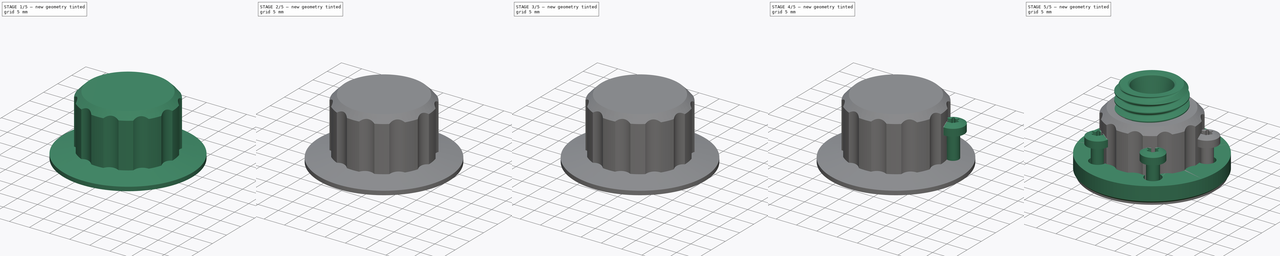
[diagram: build sequence overview — one tinted view per stage of 5, left to right]
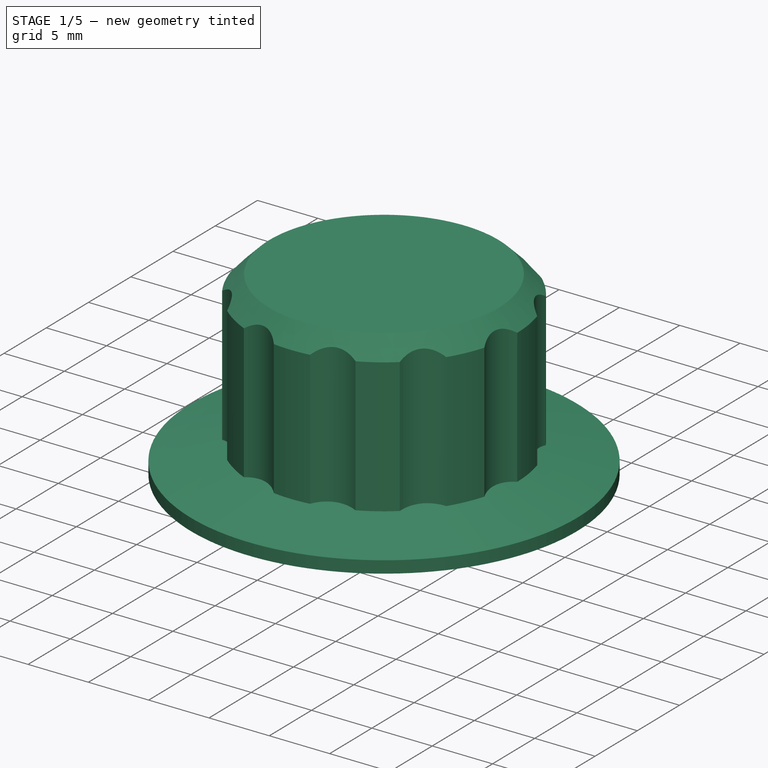
[diagram: stage 1 of 5 — iso view after this stage's code; geometry added in this stage tinted green]
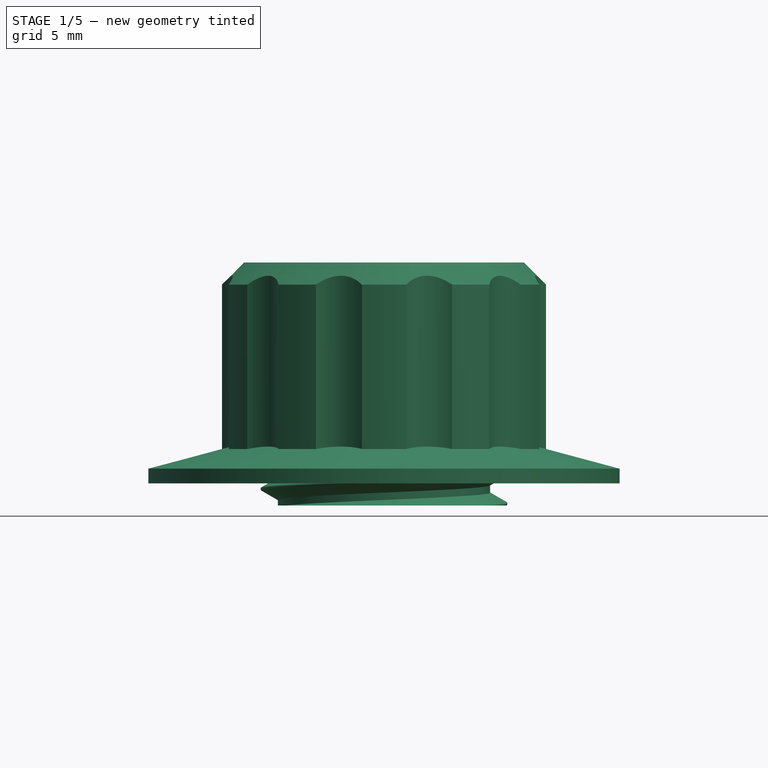
[diagram: stage 1 of 5 — front view after this stage's code; geometry added in this stage tinted green]
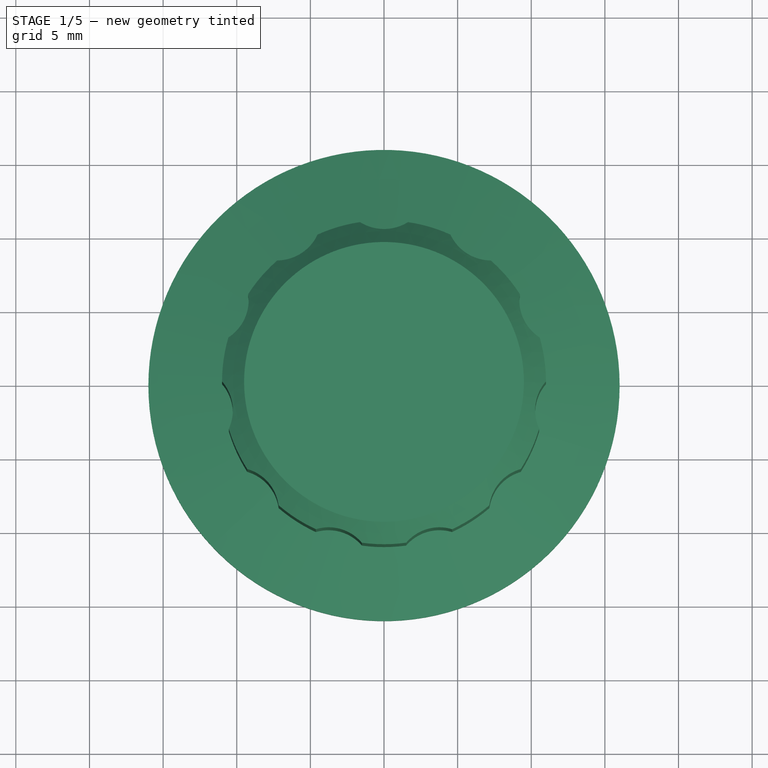
[diagram: stage 1 of 5 — top view after this stage's code; geometry added in this stage tinted green]
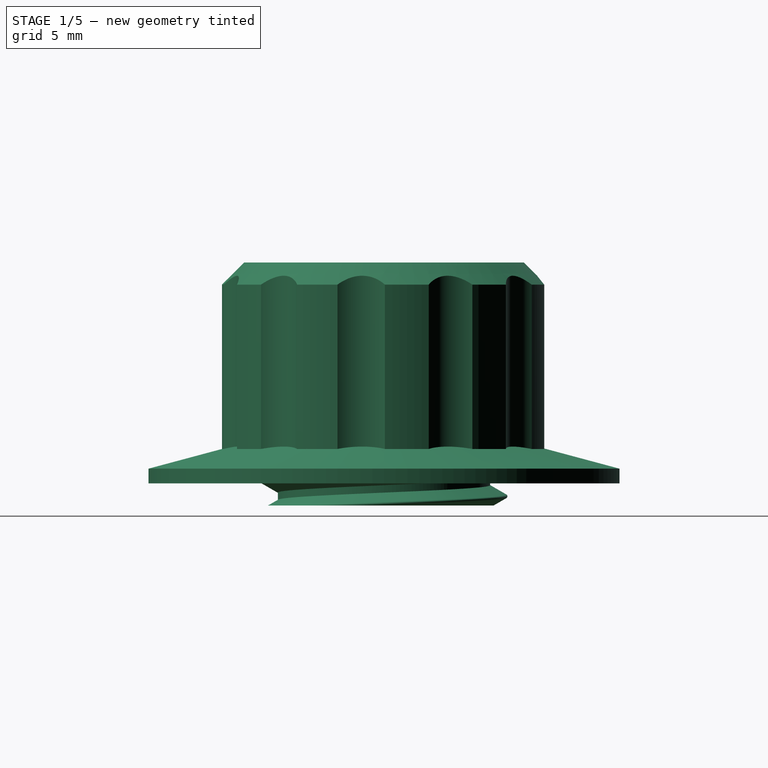
[diagram: stage 1 of 5 — right view after this stage's code; geometry added in this stage tinted green]
FCSTD DOCUMENT  (FreeCAD 0.21R30340 +2 (Git))
Label: Filamentbuchse-bowden2
License: All rights reserved
LicenseURL: http://en.wikipedia.org/wiki/All_rights_reserved
objects: Sketcher::SketchObject×19, PartDesign::Chamfer×13, PartDesign::Pocket×11, Part::FeaturePython×10, PartDesign::PolarPattern×7, PartDesign::Body×7, PartDesign::Boolean×5, Part::Feature×5, PartDesign::Pad×4, PartDesign::Revolution×3, PartDesign::Hole×2, App::FeaturePython×1, Part::Part2DObjectPython×1
note: 120 computed .brp shape members not serialized (recipe doc carries the construction recipe); baked Part::Feature solids carry a one-line shape summary decoded from their .brp

FEATURE [PartDesign::Body] Body004  label="SpannMutter"
  Group = -> [Sketch010,Pad002,Chamfer007,Sketch011,Pocket005,PolarPattern005,Sketch012,Pocket007,Pocket008,Chamfer008,Sketch013,Chamfer009,Boolean002]
  Origin = -> Origin004
  Placement = pos=(0,0,12) rot=(0,0,1;0rad)
  Tip = -> Boolean002
FEATURE [Part::FeaturePython] ScrewTap002  label="M16x8.5-ScrewTap001"  # Fasteners workbench fastener (typed FeaturePython)
  Placement = pos=(0,0,8.5) rot=(0,0,1;0rad)
  diameter = 13
  diameterCustom = 6
  invert = false
  leftHanded = false
  length = 8.5
  matchOuter = false
  offset = 0
  pitchCustom = 1
  thread = true
  type = 2
  expr: .Placement.Base.z = <<Pocket011>>.Length
  expr: length = <<Pocket011>>.Length
FEATURE [Sketcher::SketchObject] Sketch014
  FullyConstrained = true
  MapMode = 5
  Support = -> [XY_Plane005]
  sketch-geometry (1):
    g0: Circle CenterX=0 CenterY=0 CenterZ=0 NormalX=0 NormalY=0 NormalZ=1 AngleXU=0 Radius=11
  constraints (2):
    c: Coincident(g0,g-1)
    c: Diameter(g0) = 22  'HatDiameter'
FEATURE [PartDesign::Pad] Pad003
  Direction = (0,0,1)
  Length = 15
  Length2 = 10
  Profile = -> Sketch014
  ReferenceAxis = -> Sketch014 [N_Axis]
  Refine = true
  Type = 0
FEATURE [PartDesign::Chamfer] Chamfer010
  Angle = 45
  Base = -> Pad003 [Edge3,Edge2]
  BaseFeature = -> Pad003
  ChamferType = 0
  FlipDirection = false
  Refine = true
  Size = 1.5
  Size2 = 1
  SupportTransform = false
  UseAllEdges = false
FEATURE [Sketcher::SketchObject] Sketch015
  FullyConstrained = true
  MapMode = 5
  Support = -> [XY_Plane005]
  expr: Constraints[4] = <<Sketch014>>.Constraints.HatDiameter / 2 + 0.8 * .Constraints.radius
  sketch-geometry (2):
    g0: ArcOfCircle CenterX=2e-16 CenterY=13.4 CenterZ=0 NormalX=0 NormalY=0 NormalZ=1 AngleXU=0 Radius=3 StartAngle=3.14159 EndAngle=6.28319
    g1: LineSegment StartX=-3 StartY=13.4 StartZ=0 EndX=3 EndY=13.4 EndZ=0
  constraints (6):
    c: Coincident(g1,g0)
    c: Coincident(g1,g0)
    c: Symmetric(g0,g0,g-2)
    c: PointOnObject(g0,g1)
    c: DistanceY(g-1,g0) = 13.4
    c: Radius(g0) = 3  'radius'
FEATURE [PartDesign::Pocket] Pocket009
  BaseFeature = -> Chamfer010
  Direction = (0,0,-1)
  Inverse = false
  Length = 5
  Length2 = 5
  Profile = -> Sketch015
  ReferenceAxis = -> Sketch015 [N_Axis]
  Refine = true
  Reversed = true
  Type = 1
FEATURE [PartDesign::PolarPattern] PolarPattern006
  Angle = 360
  Axis = -> Sketch015 [N_Axis]
  BaseFeature = -> Pocket009
  Occurrences = 11
  Originals = -> [Pocket009]
  Refine = true
FEATURE [Sketcher::SketchObject] Sketch016
  FullyConstrained = true
  MapMode = 5
  Placement = pos=(0,0,0) rot=(0,1,0;3.14159rad)
  Support = -> [XY_Plane005]
  sketch-geometry (1):
    g0: Circle CenterX=0 CenterY=0 CenterZ=0 NormalX=0 NormalY=0 NormalZ=1 AngleXU=0 Radius=5.5
  constraints (2):
    c: Coincident(g0,g-1)
    c: Diameter(g0) = 11
FEATURE [PartDesign::Pocket] Pocket010
  BaseFeature = -> PolarPattern006
  Direction = (0,0,1)
  Inverse = false
  Length = 13
  Length2 = 5
  Profile = -> Sketch016
  ReferenceAxis = -> Sketch016 [N_Axis]
  Refine = true
  Type = 0
  expr: Length = Pad003.Length - 2mm
FEATURE [Sketcher::SketchObject] Sketch017
  FullyConstrained = true
  MapMode = 5
  Placement = pos=(0,0,0) rot=(0,1,0;3.14159rad)
  Support = -> [XY_Plane005]
  sketch-geometry (1):
    g0: Circle CenterX=0 CenterY=0 CenterZ=0 NormalX=0 NormalY=0 NormalZ=1 AngleXU=0 Radius=7
  constraints (2):
    c: Coincident(g0,g-1)
    c: Diameter(g0) = 14
FEATURE [PartDesign::Pocket] Pocket011
  BaseFeature = -> Pocket010
  Direction = (0,0,1)
  Inverse = false
  Length = 8.5
  Length2 = 5
  Profile = -> Sketch017
  ReferenceAxis = -> Sketch017 [N_Axis]
  Refine = true
  Type = 0
FEATURE [PartDesign::Chamfer] Chamfer011
  Angle = 45
  Base = -> Pocket011 [Edge42]
  BaseFeature = -> Pocket011
  ChamferType = 0
  FlipDirection = false
  Refine = true
  Size = 1.5
  Size2 = 1
  SupportTransform = false
  UseAllEdges = false
FEATURE [PartDesign::Body] Body005  label="SpannAbdeckung"
  Group = -> [Sketch014,Pad003,Chamfer010,Sketch015,Pocket009,PolarPattern006,Sketch016,Pocket010,Pocket011,Chamfer011,Chamfer012,Boolean003,Sketch017]
  Origin = -> Origin005
  Placement = pos=(0,0,12) rot=(0,0,1;0rad)
  Tip = -> Boolean003
FEATURE [Sketcher::SketchObject] Sketch018
  FullyConstrained = false
  MapMode = 5
  Placement = pos=(0,0,0) rot=(1,0,0;1.5708rad)
  Support = -> [XZ_Plane006]
  sketch-geometry (8):
    g0: LineSegment StartX=16 StartY=1 StartZ=0 EndX=16 EndY=0 EndZ=0
    g1: LineSegment StartX=16 StartY=0 StartZ=0 EndX=0 EndY=0 EndZ=0
    g2: LineSegment StartX=0 StartY=0 StartZ=0 EndX=0 EndY=7.6077 EndZ=0
    g3: LineSegment StartX=8 StartY=2.6077 StartZ=0 EndX=10 EndY=2.6077 EndZ=0
    g4: LineSegment StartX=10 StartY=2.6077 StartZ=0 EndX=16 EndY=1 EndZ=0
    g5: LineSegment StartX=0 StartY=7.6077 StartZ=0 EndX=6.5 EndY=7.6077 EndZ=0
    g6: LineSegment StartX=6.5 StartY=7.6077 StartZ=0 EndX=8 EndY=6.1077 EndZ=0
    g7: LineSegment StartX=8 StartY=6.1077 StartZ=0 EndX=8 EndY=2.6077 EndZ=0
  constraints (23):
    c: PointOnObject(g5,g-2)
    c: Coincident(g4,g0)
    c: PointOnObject(g0,g-1)
    c: Coincident(g0,g1)
    c: Coincident(g1,g-1)
    c: Coincident(g1,g2)
    c: Coincident(g2,g5)
    c: DistanceX(g5,g6) = 8
    c: DistanceX(g1,g1) = 16
    c: Vertical(g0)
    c: DistanceY(g0,g0) = 1
    c: Coincident(g3,g4)
    c: Horizontal(g3)
    c: DistanceX(g1,g3) = 10
    c: Angle(g4,g1) = 0.261799
    c: DistanceY(g1,g3) = 2.6077  'height'
    c: Coincident(g5,g6)
    c: Horizontal(g5)
    c: Coincident(g7,g6)
    c: DistanceY(g3,g5) = 5
    c: DistanceX(g5,g6) = 1.5
    c: Vertical(g7)
    c: Coincident(g7,g3)
FEATURE [PartDesign::Revolution] Revolution002
  Angle = 360
  Axis = (-3e-16,3e-16,1)
  Base = (0,0,0)
  Placement = pos=(0,0,0) rot=(1,0,0;1.5708rad)
  Profile = -> Sketch018
  ReferenceAxis = -> Z_Axis006
  Refine = true
  Reversed = true
FEATURE [Part::FeaturePython] ScrewDie001  label="M16x7-ScrewDie"  # Fasteners workbench fastener (typed FeaturePython)
  Placement = pos=(0,0,9.6077) rot=(0,0,1;0rad)
  diameter = 13
  diameterCustom = 6
  invert = false
  leftHanded = false
  length = 7
  matchOuter = false
  offset = 0
  pitchCustom = 1
  thread = true
  type = 0
  expr: .Placement.Base.z = Sketch018.Constraints.height + length
FEATURE [PartDesign::Boolean] Boolean004
  BaseFeature = -> Revolution002
  Group = -> [ScrewDie001]
  Refine = true
  Type = 1
FEATURE [PartDesign::Body] Body006  label="Abdeckunghalter"
  Group = -> [Sketch018,Revolution002,Boolean004]
  Origin = -> Origin006
  Placement = pos=(0,0,9.4) rot=(0,0,1;0rad)
  Tip = -> Boolean004
note: 1 file-system path scrubbed to <path> (originals preserved in the JSON sidecar)
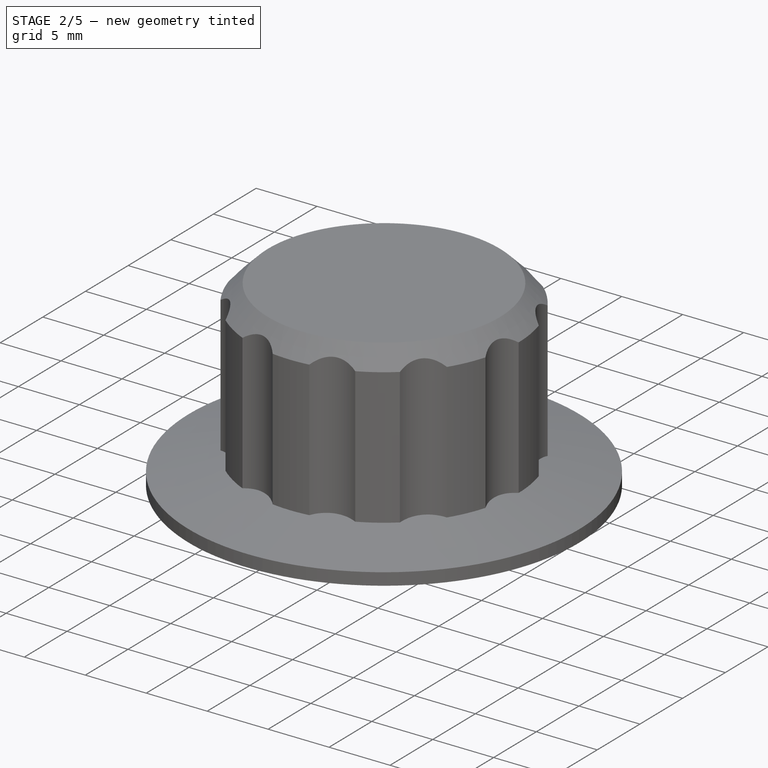
[diagram: stage 2 of 5 — iso view after this stage's code; geometry added in this stage tinted green]
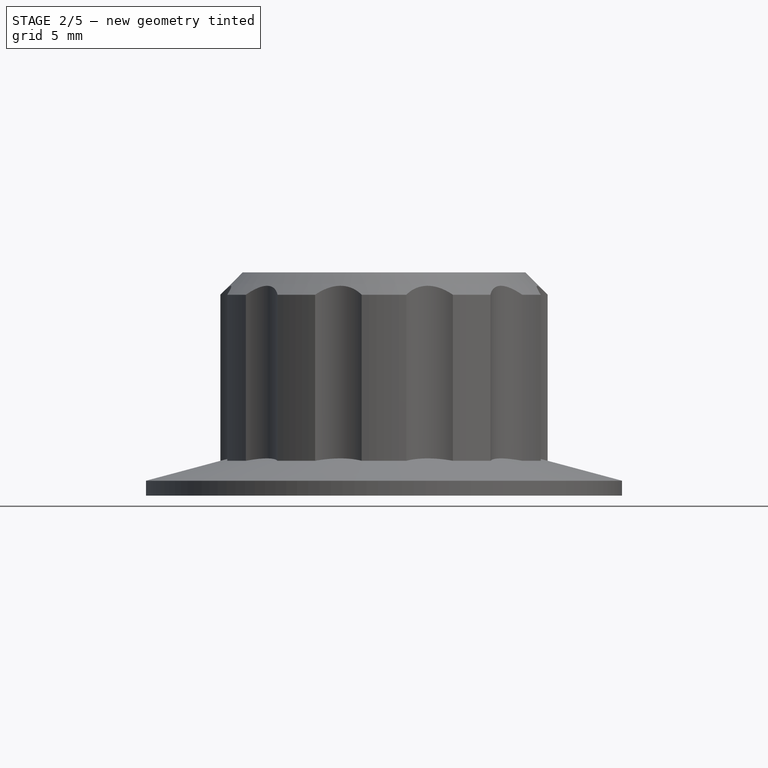
[diagram: stage 2 of 5 — front view after this stage's code; geometry added in this stage tinted green]
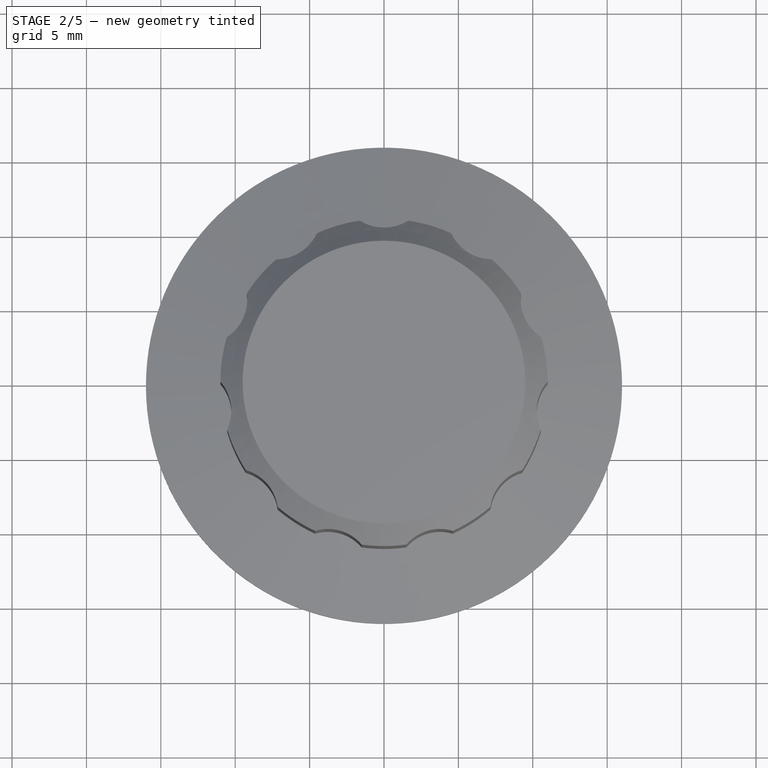
[diagram: stage 2 of 5 — top view after this stage's code; geometry added in this stage tinted green]
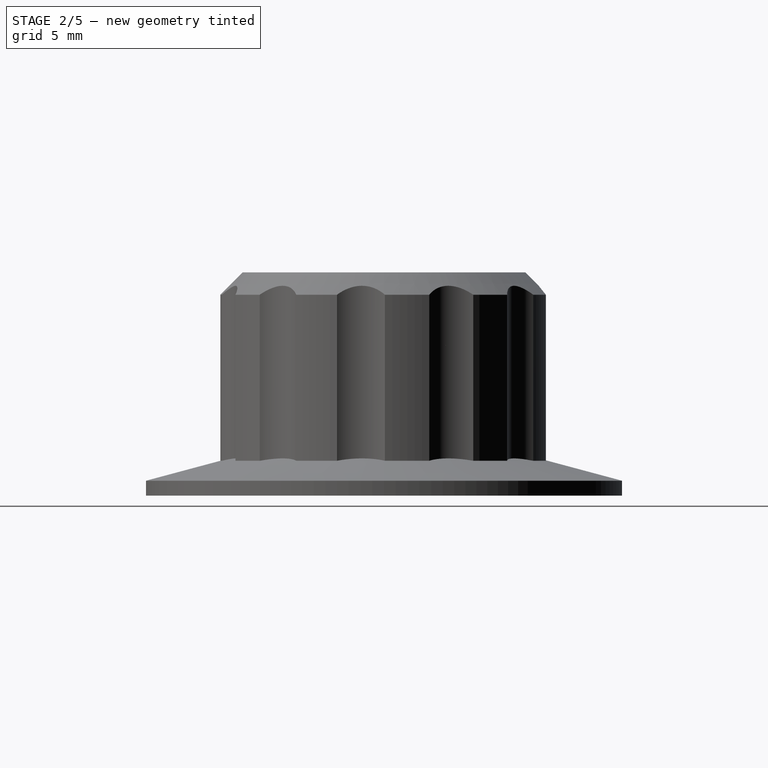
[diagram: stage 2 of 5 — right view after this stage's code; geometry added in this stage tinted green]
FEATURE [PartDesign::Body] Body003  label="Spannzange"
  Group = -> [Sketch008,Revolution001,Sketch001,Chamfer006,Pocket003,PolarPattern003,Sketch009,Pocket004,PolarPattern004]
  Origin = -> Origin003
  Placement = pos=(0,0,11.5) rot=(0,0,1;0rad)
  Tip = -> PolarPattern004
FEATURE [Part::Feature] Part__Feature001  label="ruthex RX-M3-5,008"
  Placement = pos=(0,12,4.5) rot=(0,0,1;0rad)
  shape: bbox 4.669 x 4.629 x 4.252 mm, 336 faces (baked)
FEATURE [Part::Feature] Part__Feature002  label="ruthex RX-M3-5,009"
  Placement = pos=(11.4127,3.7082,4.5) rot=(0,0,1;0rad)
  shape: bbox 4.669 x 4.629 x 4.252 mm, 336 faces (baked)
  expr: .Placement.Base.x = 12mm * sin(72°)
  expr: .Placement.Base.y = 12mm * cos(72°)
FEATURE [Part::Feature] Part__Feature003  label="ruthex RX-M3-5,010"
  Placement = pos=(-11.4127,3.7082,4.5) rot=(0,0,1;0rad)
  shape: bbox 4.669 x 4.629 x 4.252 mm, 336 faces (baked)
  expr: .Placement.Base.x = -12mm * sin(72°)
  expr: .Placement.Base.y = 12mm * cos(72°)
FEATURE [Part::Feature] Part__Feature004  label="ruthex RX-M3-5,011"
  Placement = pos=(-7.05342,-9.7082,4.5) rot=(0,0,1;0rad)
  shape: bbox 4.669 x 4.629 x 4.252 mm, 336 faces (baked)
  expr: .Placement.Base.x = -12mm * sin(36°)
  expr: .Placement.Base.y = -12mm * cos(36°)
FEATURE [Part::Feature] Part__Feature005  label="ruthex RX-M3-5,012"
  Placement = pos=(7.05342,-9.7082,4.5) rot=(0,0,1;0rad)
  shape: bbox 4.669 x 4.629 x 4.252 mm, 336 faces (baked)
  expr: .Placement.Base.x = 12mm * sin(36°)
  expr: .Placement.Base.y = -12mm * cos(36°)
FEATURE [Part::FeaturePython] ScrewTap001  label="M16x8-ScrewTap"  # Fasteners workbench fastener (typed FeaturePython)
  Placement = pos=(0,0,8) rot=(0,0,1;0rad)
  diameter = 13
  diameterCustom = 6
  invert = false
  leftHanded = false
  length = 8
  matchOuter = false
  offset = 0
  pitchCustom = 1
  thread = true
  type = 2
  expr: .Placement.Base.z = Pad002.Length - 3mm
  expr: length = Pad002.Length - 3mm
FEATURE [Sketcher::SketchObject] Sketch010
  FullyConstrained = true
  MapMode = 5
  Support = -> [XY_Plane004]
  sketch-geometry (1):
    g0: Circle CenterX=0 CenterY=0 CenterZ=0 NormalX=0 NormalY=0 NormalZ=1 AngleXU=0 Radius=11
  constraints (2):
    c: Coincident(g0,g-1)
    c: Diameter(g0) = 22  'HatDiameter'
FEATURE [PartDesign::Pad] Pad002
  Direction = (0,0,1)
  Length = 11
  Length2 = 10
  Profile = -> Sketch010
  ReferenceAxis = -> Sketch010 [N_Axis]
  Refine = true
  Type = 0
FEATURE [PartDesign::Chamfer] Chamfer007
  Angle = 45
  Base = -> Pad002 [Edge3,Edge2]
  BaseFeature = -> Pad002
  ChamferType = 0
  FlipDirection = false
  Refine = true
  Size = 1.5
  Size2 = 1
  SupportTransform = false
  UseAllEdges = false
FEATURE [Sketcher::SketchObject] Sketch011
  FullyConstrained = true
  MapMode = 5
  Support = -> [XY_Plane004]
  expr: Constraints[4] = <<Sketch010>>.Constraints.HatDiameter / 2 + 0.8 * .Constraints.radius
  sketch-geometry (2):
    g0: ArcOfCircle CenterX=2e-16 CenterY=13.4 CenterZ=0 NormalX=0 NormalY=0 NormalZ=1 AngleXU=0 Radius=3 StartAngle=3.14159 EndAngle=6.28319
    g1: LineSegment StartX=-3 StartY=13.4 StartZ=0 EndX=3 EndY=13.4 EndZ=0
  constraints (6):
    c: Coincident(g1,g0)
    c: Coincident(g1,g0)
    c: Symmetric(g0,g0,g-2)
    c: PointOnObject(g0,g1)
    c: DistanceY(g-1,g0) = 13.4
    c: Radius(g0) = 3  'radius'
FEATURE [PartDesign::Pocket] Pocket005
  BaseFeature = -> Chamfer007
  Direction = (0,0,-1)
  Inverse = false
  Length = 5
  Length2 = 5
  Profile = -> Sketch011
  ReferenceAxis = -> Sketch011 [N_Axis]
  Refine = true
  Reversed = true
  Type = 1
FEATURE [PartDesign::PolarPattern] PolarPattern005
  Angle = 360
  Axis = -> Sketch011 [N_Axis]
  BaseFeature = -> Pocket005
  Occurrences = 11
  Originals = -> [Pocket005]
  Refine = true
FEATURE [Sketcher::SketchObject] Sketch012
  FullyConstrained = true
  MapMode = 5
  Placement = pos=(0,0,0) rot=(0,1,0;3.14159rad)
  Support = -> [XY_Plane004]
  sketch-geometry (1):
    g0: Circle CenterX=0 CenterY=0 CenterZ=0 NormalX=0 NormalY=0 NormalZ=1 AngleXU=0 Radius=7
  constraints (2):
    c: Coincident(g0,g-1)
    c: Diameter(g0) = 14
FEATURE [PartDesign::Pocket] Pocket007
  BaseFeature = -> PolarPattern005
  Direction = (0,0,1)
  Inverse = false
  Length = 9
  Length2 = 5
  Profile = -> Sketch012
  ReferenceAxis = -> Sketch012 [N_Axis]
  Refine = true
  Type = 0
  expr: Length = Pad002.Length - 2mm
FEATURE [Sketcher::SketchObject] Sketch013
  AttachmentOffset = pos=(0,0,9) rot=(0,0,1;0rad)
  FullyConstrained = true
  MapMode = 5
  Placement = pos=(0,0,9) rot=(0,0,1;0rad)
  Support = -> [XY_Plane004]
  expr: .AttachmentOffset.Base.z = Pocket007.Length
  sketch-geometry (1):
    g0: Circle CenterX=0 CenterY=0 CenterZ=0 NormalX=0 NormalY=0 NormalZ=1 AngleXU=0 Radius=5
  constraints (2):
    c: Coincident(g0,g-1)
    c: Diameter(g0) = 10
FEATURE [PartDesign::Pocket] Pocket008
  BaseFeature = -> Pocket007
  Direction = (0,0,-1)
  Inverse = false
  Length = 5
  Length2 = 5
  Profile = -> Sketch013
  ReferenceAxis = -> Sketch013 [N_Axis]
  Refine = true
  Reversed = true
  TaperAngle = -30
  Type = 0
FEATURE [PartDesign::Chamfer] Chamfer008
  Angle = 45
  Base = -> Pocket008 [Edge42]
  BaseFeature = -> Pocket008
  ChamferType = 0
  FlipDirection = false
  Refine = true
  Size = 1.5
  Size2 = 1
  SupportTransform = false
  UseAllEdges = false
FEATURE [PartDesign::Chamfer] Chamfer009
  Angle = 45
  Base = -> Chamfer008 [Edge80]
  BaseFeature = -> Chamfer008
  ChamferType = 0
  FlipDirection = false
  Refine = true
  Size = 0.3
  Size2 = 1
  SupportTransform = false
  UseAllEdges = false
FEATURE [PartDesign::Chamfer] Chamfer012
  Angle = 45
  Base = -> Chamfer011 [Edge80]
  BaseFeature = -> Chamfer011
  ChamferType = 0
  FlipDirection = false
  Refine = true
  Size = 0.3
  Size2 = 1
  SupportTransform = false
  UseAllEdges = false
FEATURE [PartDesign::Boolean] Boolean003
  BaseFeature = -> Chamfer012
  Group = -> [ScrewTap002]
  Refine = true
  Type = 1
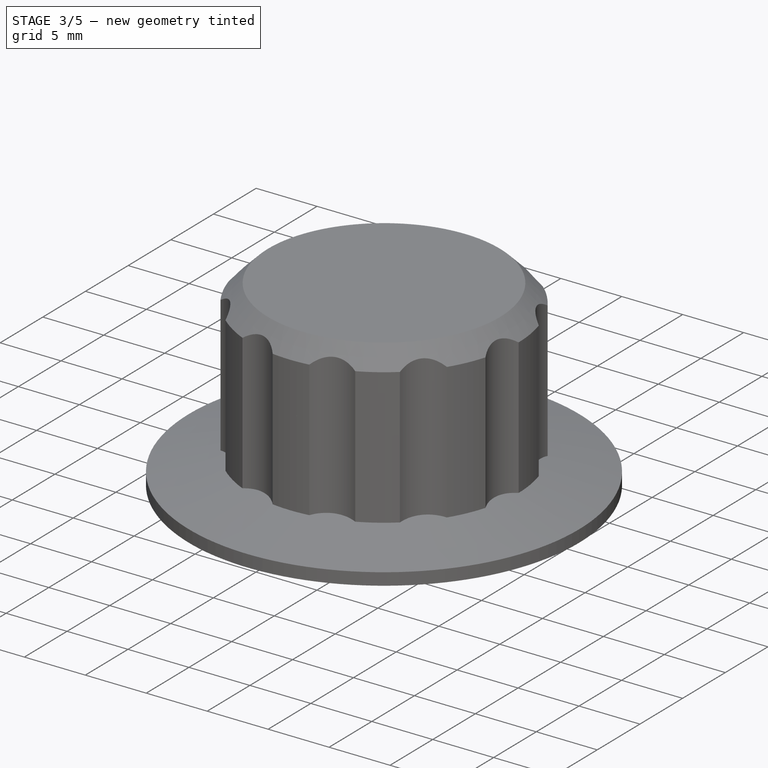
[diagram: stage 3 of 5 — iso view after this stage's code; geometry added in this stage tinted green]
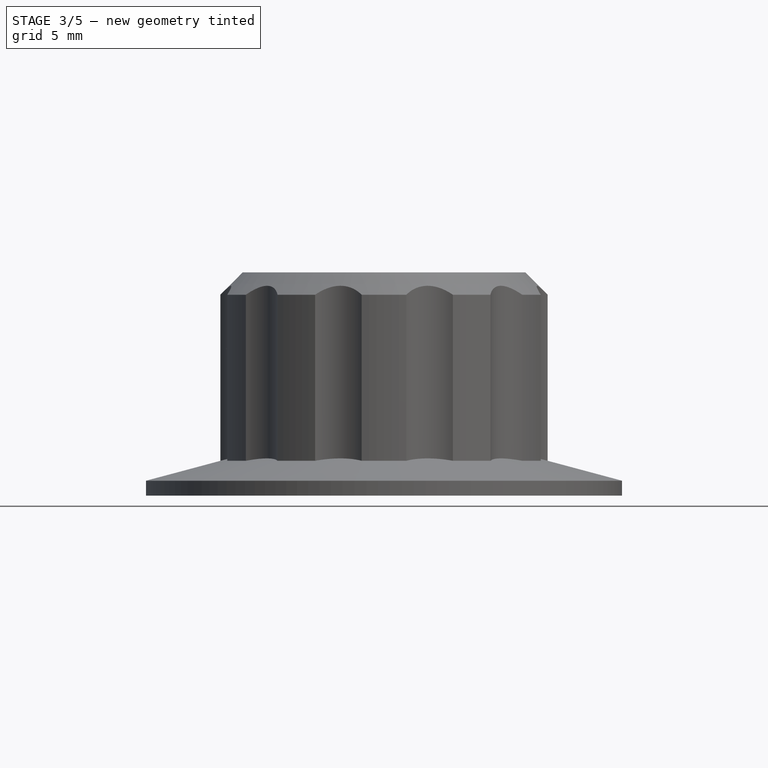
[diagram: stage 3 of 5 — front view after this stage's code; geometry added in this stage tinted green]
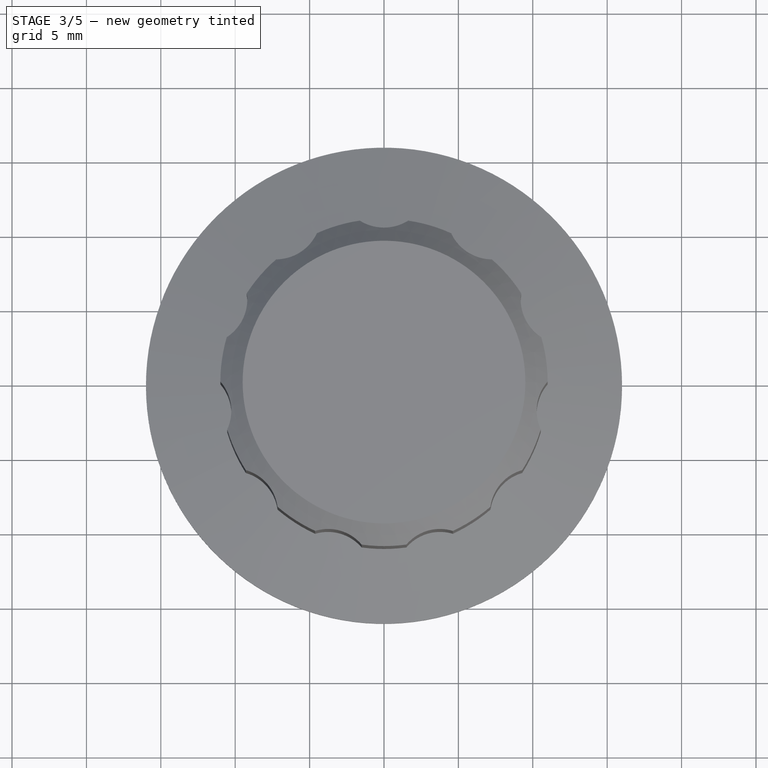
[diagram: stage 3 of 5 — top view after this stage's code; geometry added in this stage tinted green]
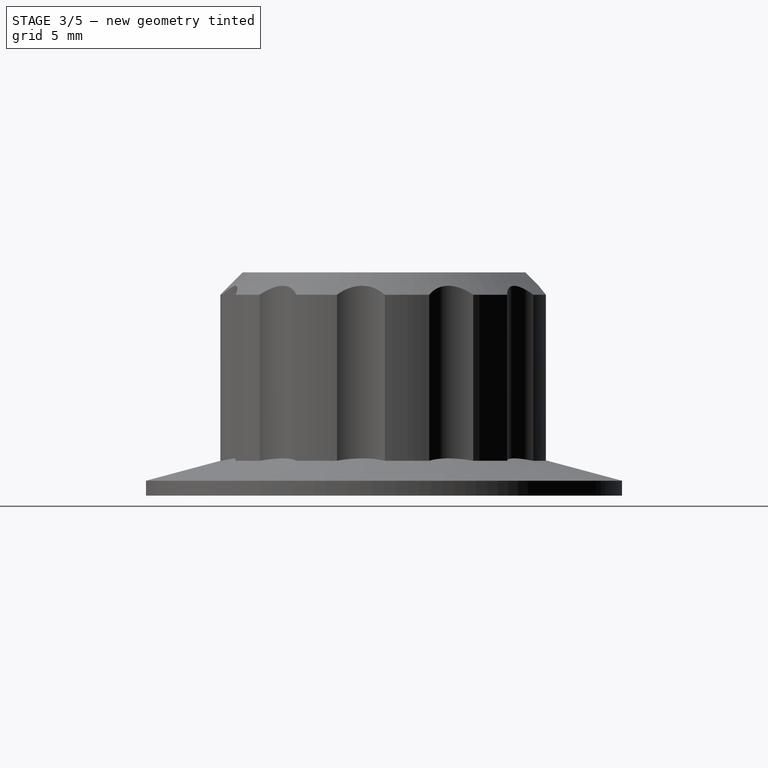
[diagram: stage 3 of 5 — right view after this stage's code; geometry added in this stage tinted green]
FEATURE [PartDesign::Body] Body001  label="Platte"
  Group = -> [Sketch003,Pad,Sketch004,Hole001,PolarPattern,Chamfer002,Chamfer003]
  Origin = -> Origin001
  Placement = pos=(0,0,6.3) rot=(0,0,1;0rad)
  Tip = -> Chamfer003
FEATURE [Sketcher::SketchObject] Sketch005
  FullyConstrained = true
  MapMode = 5
  Support = -> [XY_Plane002]
  sketch-geometry (1):
    g0: Circle CenterX=0 CenterY=0 CenterZ=0 NormalX=0 NormalY=0 NormalZ=1 AngleXU=0 Radius=11
  constraints (2):
    c: Coincident(g0,g-1)
    c: Diameter(g0) = 22  'HatDiameter'
FEATURE [PartDesign::Pad] Pad001
  Direction = (0,0,1)
  Length = 11.5
  Length2 = 10
  Profile = -> Sketch005
  ReferenceAxis = -> Sketch005 [N_Axis]
  Refine = true
  Type = 0
FEATURE [PartDesign::Chamfer] Chamfer004
  Angle = 45
  Base = -> Pad001 [Edge3,Edge2]
  BaseFeature = -> Pad001
  ChamferType = 0
  FlipDirection = false
  Refine = true
  Size = 1.5
  Size2 = 1
  SupportTransform = false
  UseAllEdges = false
FEATURE [Sketcher::SketchObject] Sketch006
  FullyConstrained = true
  MapMode = 5
  Support = -> [XY_Plane002]
  expr: Constraints[4] = <<Sketch005>>.Constraints.HatDiameter / 2 + 0.8 * .Constraints.radius
  sketch-geometry (2):
    g0: ArcOfCircle CenterX=2e-16 CenterY=13.4 CenterZ=0 NormalX=0 NormalY=0 NormalZ=1 AngleXU=0 Radius=3 StartAngle=3.14159 EndAngle=6.28319
    g1: LineSegment StartX=-3 StartY=13.4 StartZ=0 EndX=3 EndY=13.4 EndZ=0
  constraints (6):
    c: Coincident(g1,g0)
    c: Coincident(g1,g0)
    c: Symmetric(g0,g0,g-2)
    c: PointOnObject(g0,g1)
    c: DistanceY(g-1,g0) = 13.4
    c: Radius(g0) = 3  'radius'
FEATURE [PartDesign::Pocket] Pocket
  BaseFeature = -> Chamfer004
  Direction = (0,0,-1)
  Inverse = false
  Length = 5
  Length2 = 5
  Profile = -> Sketch006
  ReferenceAxis = -> Sketch006 [N_Axis]
  Refine = true
  Reversed = true
  Type = 1
FEATURE [PartDesign::PolarPattern] PolarPattern002
  Angle = 360
  Axis = -> Sketch006 [N_Axis]
  BaseFeature = -> Pocket
  Occurrences = 11
  Originals = -> [Pocket]
  Refine = true
FEATURE [PartDesign::Body] Body002  label="Deckel"
  Group = -> [Sketch005,Pad001,Chamfer004,Sketch006,Pocket,PolarPattern002,Sketch007,Pocket002,Chamfer005,Pocket001,Boolean001,ShapeString]
  Origin = -> Origin002
  Placement = pos=(0,0,12) rot=(0,0,1;0rad)
  Tip = -> Boolean001
FEATURE [Sketcher::SketchObject] Sketch008
  FullyConstrained = false
  MapMode = 5
  Placement = pos=(0,0,0) rot=(0.57735,0.57735,0.57735;2.0944rad)
  Support = -> [YZ_Plane003]
  sketch-geometry (9):
    g0: LineSegment StartX=-2 StartY=0 StartZ=0 EndX=-2 EndY=11.2764 EndZ=0
    g1: LineSegment StartX=-4 StartY=11.2764 StartZ=0 EndX=-4.73694 EndY=10 EndZ=0
    g2: LineSegment StartX=-4.73694 StartY=9 StartZ=0 EndX=-3.15 EndY=0 EndZ=0
    g3: LineSegment StartX=-3.15 StartY=-3e-16 StartZ=0 EndX=-2 EndY=0 EndZ=0
    g4: LineSegment StartX=-2 StartY=-5.90663 StartZ=0 EndX=-2 EndY=-0.906632 EndZ=0
    g5: LineSegment StartX=-2 StartY=-0.906632 StartZ=0 EndX=-3 EndY=-0.906632 EndZ=0
    g6: LineSegment StartX=-3 StartY=-0.906632 StartZ=0 EndX=-4.76327 EndY=9.09337 EndZ=0
    g7: LineSegment StartX=-4 StartY=11.2764 StartZ=0 EndX=-2 EndY=11.2764 EndZ=0
    g8: LineSegment StartX=-4.73694 StartY=10 StartZ=0 EndX=-4.73694 EndY=9 EndZ=0
  constraints (27):
    c: PointOnObject(g0,g-1)
    c: Vertical(g0)
    c: PointOnObject(g2,g-1)
    c: Coincident(g2,g3)
    c: Coincident(g3,g0)
    c: Angle(g0,g2) = 0.174533
    c: Angle(g1,g0) = 0.523599
    c: DistanceX(g0,g-1) = 2
    c: DistanceY(g2,g2) = 9
    c: DistanceY(g2,g1) = 1
    c: DistanceX(g3,g3) = 1.15
    c: Coincident(g4,g5)
    c: Coincident(g5,g6)
    c: DistanceY(g4,g4) = 5
    c: Vertical(g4)
    c: DistanceX(g4,g-1) = 2
    c: DistanceX(g5,g5) = 1
    c: Angle(g-2,g6) = 0.174533
    c: DistanceY(g6,g6) = 10
    c: Horizontal(g5)
    c: Coincident(g7,g1)
    c: Coincident(g7,g0)
    c: Horizontal(g7)
    c: DistanceX(g7,g7) = 2
    c: Coincident(g8,g1)
    c: Coincident(g8,g2)
    c: Vertical(g8)
FEATURE [PartDesign::Revolution] Revolution001
  Angle = 360
  Axis = (-2e-16,3e-16,1)
  Base = (0,0,0)
  Placement = pos=(0,0,0) rot=(0.57735,0.57735,0.57735;2.0944rad)
  Profile = -> Sketch008
  ReferenceAxis = -> Sketch008 [V_Axis]
  Refine = true
FEATURE [PartDesign::Chamfer] Chamfer006
  Angle = 45
  Base = -> Revolution001 [Edge9,Edge8]
  BaseFeature = -> Revolution001
  ChamferType = 0
  FlipDirection = false
  Placement = pos=(0,0,0) rot=(0.57735,0.57735,0.57735;2.0944rad)
  Refine = true
  Size = 0.3
  Size2 = 1
  SupportTransform = false
  UseAllEdges = false
FEATURE [Sketcher::SketchObject] Sketch001
  AttachmentOffset = pos=(0,0,2) rot=(0,0,1;0rad)
  FullyConstrained = true
  MapMode = 5
  Placement = pos=(0,0,2) rot=(0,0,1;0rad)
  Support = -> [XY_Plane003]
  sketch-geometry (4):
    g0: LineSegment StartX=-0.4 StartY=5 StartZ=0 EndX=0.4 EndY=5 EndZ=0
    g1: LineSegment StartX=0.4 StartY=5 StartZ=0 EndX=0.4 EndY=0 EndZ=0
    g2: LineSegment StartX=0.4 StartY=0 StartZ=0 EndX=-0.4 EndY=0 EndZ=0
    g3: LineSegment StartX=-0.4 StartY=0 StartZ=0 EndX=-0.4 EndY=5 EndZ=0
  constraints (11):
    c: Coincident(g0,g1)
    c: Coincident(g1,g2)
    c: Coincident(g2,g3)
    c: Coincident(g3,g0)
    c: Horizontal(g0)
    c: Horizontal(g2)
    c: Vertical(g1)
    c: Vertical(g3)
    c: Symmetric(g2,g1,g-1)
    c: DistanceY(g1,g1) = 5
    c: DistanceX(g2,g2) = 0.8
FEATURE [PartDesign::Pocket] Pocket003
  BaseFeature = -> Chamfer006
  Direction = (0,0,-1)
  Inverse = false
  Length = 5
  Length2 = 5
  Placement = pos=(0,0,0) rot=(0.57735,0.57735,0.57735;2.0944rad)
  Profile = -> Sketch001
  ReferenceAxis = -> Sketch001 [N_Axis]
  Refine = true
  Reversed = true
  Type = 1
FEATURE [PartDesign::PolarPattern] PolarPattern003
  Angle = 360
  Axis = -> Sketch001 [N_Axis]
  BaseFeature = -> Pocket003
  Occurrences = 3
  Originals = -> [Pocket003]
  Placement = pos=(0,0,0) rot=(0.57735,0.57735,0.57735;2.0944rad)
  Refine = true
FEATURE [Sketcher::SketchObject] Sketch009
  FullyConstrained = true
  MapMode = 5
  Support = -> [XY_Plane003]
  sketch-geometry (4):
    g0: LineSegment StartX=-0.4 StartY=0 StartZ=0 EndX=0.4 EndY=0 EndZ=0
    g1: LineSegment StartX=0.4 StartY=0 StartZ=0 EndX=0.4 EndY=-5 EndZ=0
    g2: LineSegment StartX=0.4 StartY=-5 StartZ=0 EndX=-0.4 EndY=-5 EndZ=0
    g3: LineSegment StartX=-0.4 StartY=-5 StartZ=0 EndX=-0.4 EndY=0 EndZ=0
  constraints (11):
    c: Coincident(g0,g1)
    c: Coincident(g1,g2)
    c: Coincident(g2,g3)
    c: Coincident(g3,g0)
    c: Horizontal(g0)
    c: Horizontal(g2)
    c: Vertical(g1)
    c: Vertical(g3)
    c: Symmetric(g0,g0,g-1)
    c: DistanceX(g2,g2) = 0.8
    c: DistanceY(g3,g3) = 5
FEATURE [PartDesign::Pocket] Pocket004
  BaseFeature = -> PolarPattern003
  Direction = (0,0,-1)
  Inverse = false
  Length = 9
  Length2 = 5
  Placement = pos=(0,0,0) rot=(0.57735,0.57735,0.57735;2.0944rad)
  Profile = -> Sketch009
  ReferenceAxis = -> Sketch009 [N_Axis]
  Refine = true
  Reversed = true
  Type = 0
FEATURE [PartDesign::PolarPattern] PolarPattern004
  Angle = 360
  Axis = -> Sketch009 [N_Axis]
  BaseFeature = -> Pocket004
  Occurrences = 3
  Originals = -> [Pocket004]
  Placement = pos=(0,0,0) rot=(0.57735,0.57735,0.57735;2.0944rad)
  Refine = true
FEATURE [PartDesign::Boolean] Boolean002
  BaseFeature = -> Chamfer009
  Group = -> [ScrewTap001]
  Refine = true
  Type = 1
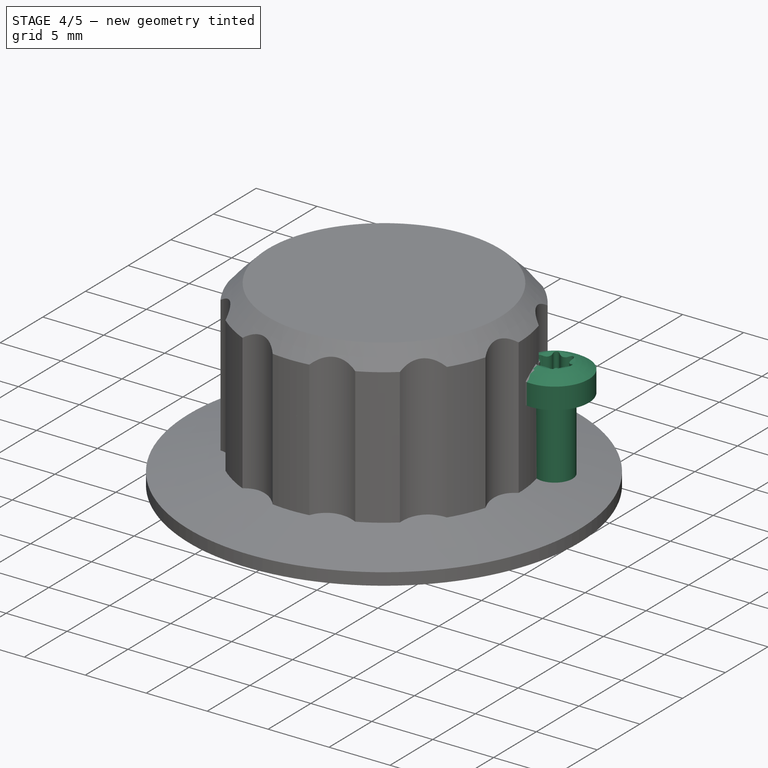
[diagram: stage 4 of 5 — iso view after this stage's code; geometry added in this stage tinted green]
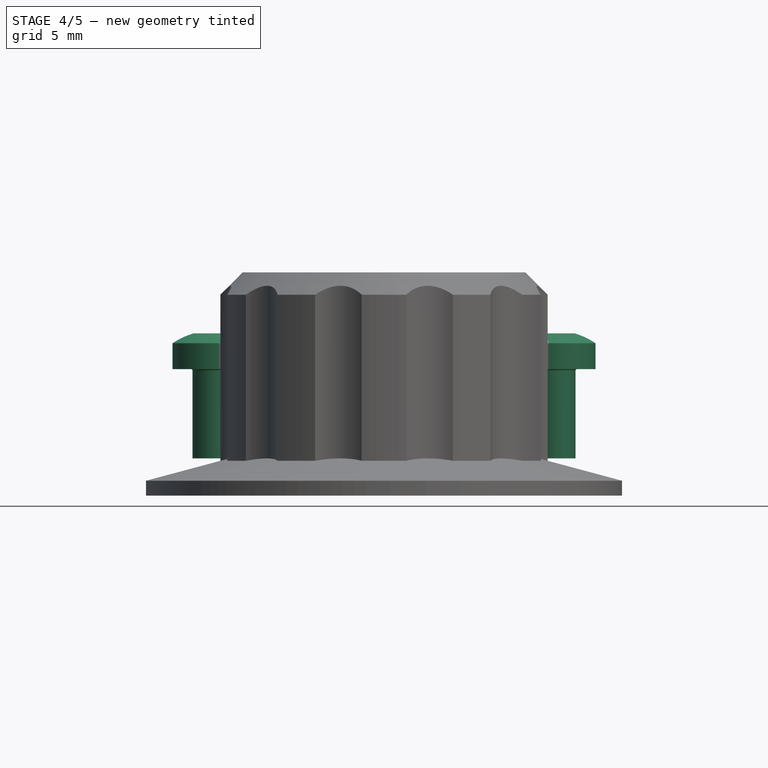
[diagram: stage 4 of 5 — front view after this stage's code; geometry added in this stage tinted green]
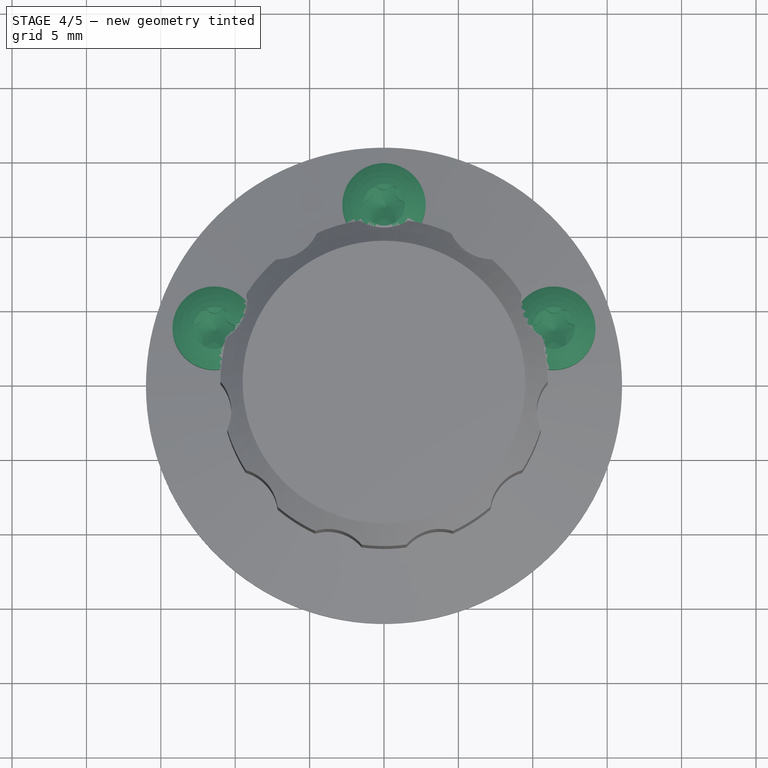
[diagram: stage 4 of 5 — top view after this stage's code; geometry added in this stage tinted green]
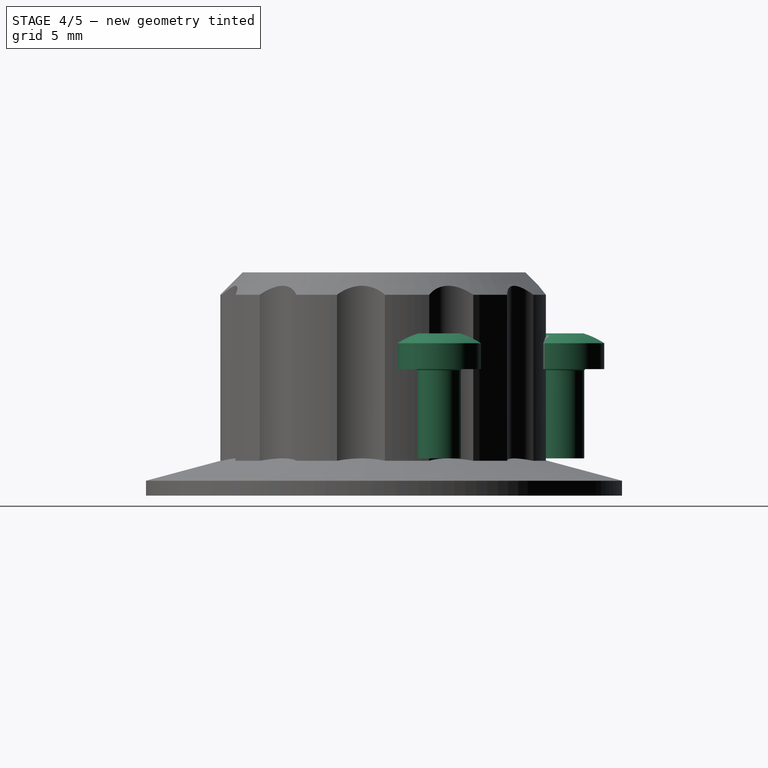
[diagram: stage 4 of 5 — right view after this stage's code; geometry added in this stage tinted green]
FEATURE [PartDesign::Body] Body  label="Körper"
  Group = -> [Sketch,Revolution,Chamfer,Sketch002,Chamfer001,Hole,PolarPattern001,Boolean]
  Origin = -> Origin
  Tip = -> Boolean
FEATURE [App::FeaturePython] dd  # WARN: FeaturePython — macro-defined, semantics opaque (R4)
  DynamicData = Created with DynamicData (v2.46) workbench. | This is a simple container object built | for holding custom properties.
  ddHoleRing = 12
  ddPlateDiameter = 16.5
FEATURE [Sketcher::SketchObject] Sketch003
  FullyConstrained = true
  MapMode = 5
  Support = -> [XY_Plane001]
  expr: Constraints[1] = dd.ddPlateDiameter * 2
  sketch-geometry (2):
    g0: Circle CenterX=0 CenterY=0 CenterZ=0 NormalX=0 NormalY=0 NormalZ=1 AngleXU=0 Radius=16.5
    g1: Circle CenterX=0 CenterY=0 CenterZ=0 NormalX=0 NormalY=0 NormalZ=1 AngleXU=0 Radius=8.2
  constraints (4):
    c: Coincident(g0,g-1)
    c: Diameter(g0) = 33
    c: Coincident(g1,g0)
    c: Diameter(g1) = 16.4
FEATURE [PartDesign::Pad] Pad
  Direction = (0,0,1)
  Length = 5
  Length2 = 10
  Profile = -> Sketch003
  ReferenceAxis = -> Sketch003 [N_Axis]
  Refine = true
  Type = 0
FEATURE [Sketcher::SketchObject] Sketch004
  AttachmentOffset = pos=(0,0,5) rot=(0,0,1;0rad)
  FullyConstrained = false
  MapMode = 5
  Placement = pos=(0,0,5) rot=(0,0,1;0rad)
  Support = -> [XY_Plane001]
  expr: .AttachmentOffset.Base.z = Pad.Length
  expr: Constraints[1] = <<dd>>.ddHoleRing
  sketch-geometry (1):
    g0: Circle CenterX=0 CenterY=12 CenterZ=0 NormalX=0 NormalY=0 NormalZ=1 AngleXU=0 Radius=2.27846
  constraints (2):
    c: PointOnObject(g0,g-2)
    c: DistanceY(g-1,g0) = 12
FEATURE [PartDesign::Hole] Hole001
  BaseFeature = -> Pad
  CustomThreadClearance = 0
  Depth = 25
  DepthType = 0
  Diameter = 3.4
  DrillForDepth = false
  DrillPoint = 1
  DrillPointAngle = 118
  HoleCutCountersinkAngle = 90
  HoleCutCustomValues = false
  HoleCutDepth = 2.8
  HoleCutDiameter = 6
  HoleCutType = 8
  ModelThread = false
  Profile = -> Sketch004
  Refine = true
  Tapered = false
  TaperedAngle = 90
  ThreadClass = 0
  ThreadDepth = 25
  ThreadDepthType = 0
  ThreadDirection = 0
  ThreadFit = 0
  ThreadSize = 9
  ThreadType = 1
  Threaded = false
  UseCustomThreadClearance = false
FEATURE [PartDesign::PolarPattern] PolarPattern
  Angle = 360
  Axis = -> Sketch004 [N_Axis]
  BaseFeature = -> Hole001
  Occurrences = 5
  Originals = -> [Hole001]
  Refine = true
FEATURE [PartDesign::Chamfer] Chamfer002
  Angle = 45
  Base = -> PolarPattern [Edge3]
  BaseFeature = -> PolarPattern
  ChamferType = 0
  FlipDirection = false
  Refine = true
  Size = 0.5
  Size2 = 1
  SupportTransform = false
  UseAllEdges = false
FEATURE [PartDesign::Chamfer] Chamfer003
  Angle = 45
  Base = -> Chamfer002 [Edge14,Edge8]
  BaseFeature = -> Chamfer002
  ChamferType = 0
  FlipDirection = false
  Refine = true
  Size = 0.3
  Size2 = 1
  SupportTransform = false
  UseAllEdges = false
FEATURE [Part::FeaturePython] Screw002  label="M3x6-Screw006"  # Fasteners workbench fastener (typed FeaturePython)
  Placement = pos=(11.4127,3.7082,8.5) rot=(0,0,1;0rad)
  baseObject = -> Body001 [Edge19]
  diameter = 3
  invert = false
  leftHanded = false
  length = 2
  lengthCustom = 6
  matchOuter = true
  offset = 0
  thread = false
  type = 23
FEATURE [Part::FeaturePython] Screw003  label="M3x6-Screw007"  # Fasteners workbench fastener (typed FeaturePython)
  Placement = pos=(-11.4127,3.7082,8.5) rot=(0,0,1;0rad)
  baseObject = -> Body001 [Edge17]
  diameter = 3
  invert = false
  leftHanded = false
  length = 2
  lengthCustom = 6
  matchOuter = true
  offset = 0
  thread = false
  type = 23
FEATURE [Part::FeaturePython] Screw004  label="M3x6-Screw008"  # Fasteners workbench fastener (typed FeaturePython)
  Placement = pos=(0,12,8.5) rot=(0,0,1;0rad)
  baseObject = -> Body001 [Edge21]
  diameter = 3
  invert = false
  leftHanded = false
  length = 2
  lengthCustom = 6
  matchOuter = true
  offset = 0
  thread = false
  type = 23
FEATURE [Part::Part2DObjectPython] ShapeString  # Draft 2D object (typed FeaturePython)
  FontFile = <path>
  MakeFace = true
  Placement = pos=(-7.5,-2.5,11.5) rot=(0,0,1;0rad)
  Size = 5
  String = 1,75
  Tracking = 0
  expr: .Placement.Base.z = Pad001.Length
FEATURE [Sketcher::SketchObject] Sketch007
  FullyConstrained = true
  MapMode = 5
  Placement = pos=(0,0,0) rot=(0,1,0;3.14159rad)
  Support = -> [XY_Plane002]
  sketch-geometry (1):
    g0: Circle CenterX=0 CenterY=0 CenterZ=0 NormalX=0 NormalY=0 NormalZ=1 AngleXU=0 Radius=7
  constraints (2):
    c: Coincident(g0,g-1)
    c: Diameter(g0) = 14
FEATURE [PartDesign::Pocket] Pocket002
  BaseFeature = -> PolarPattern002
  Direction = (0,0,1)
  Inverse = false
  Length = 8.5
  Length2 = 5
  Profile = -> Sketch007
  ReferenceAxis = -> Sketch007 [N_Axis]
  Refine = true
  Type = 0
  expr: Length = Pad001.Length - 3mm
FEATURE [PartDesign::Chamfer] Chamfer005
  Angle = 45
  Base = -> Pocket002 [Edge42]
  BaseFeature = -> Pocket002
  ChamferType = 0
  FlipDirection = false
  Refine = true
  Size = 1.5
  Size2 = 1
  SupportTransform = false
  UseAllEdges = false
FEATURE [PartDesign::Pocket] Pocket001
  BaseFeature = -> Chamfer005
  Direction = (0,0,-1)
  Inverse = false
  Length = 0.5
  Length2 = 5
  Profile = -> ShapeString
  ReferenceAxis = -> ShapeString [N_Axis]
  Refine = true
  Type = 0
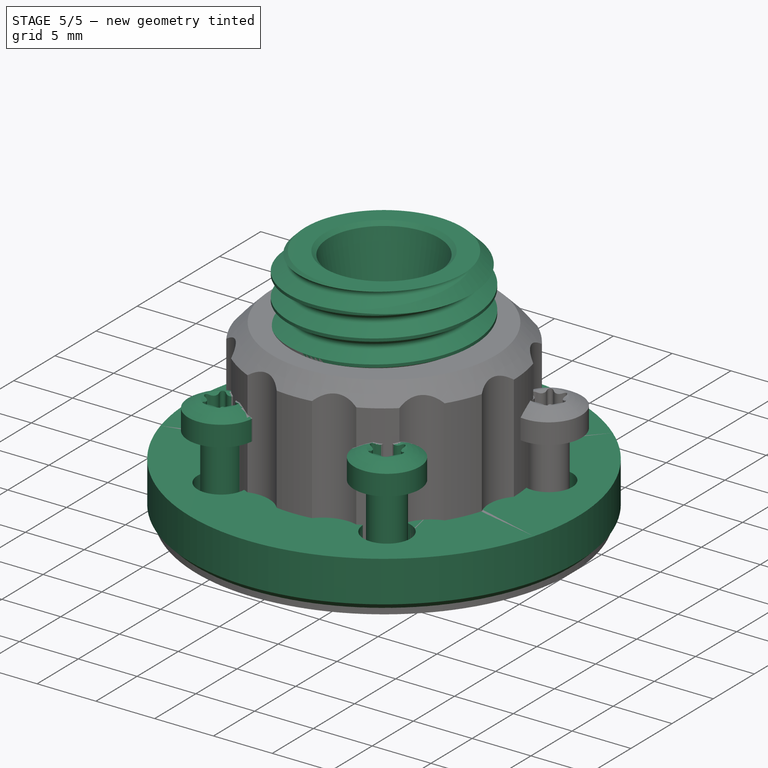
[diagram: stage 5 of 5 — iso view after this stage's code; geometry added in this stage tinted green]
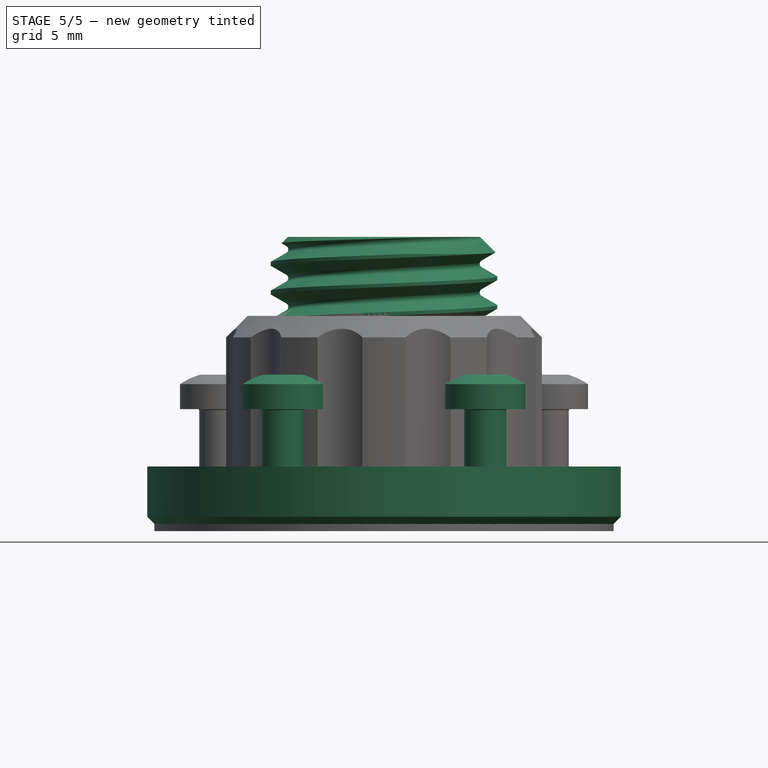
[diagram: stage 5 of 5 — front view after this stage's code; geometry added in this stage tinted green]
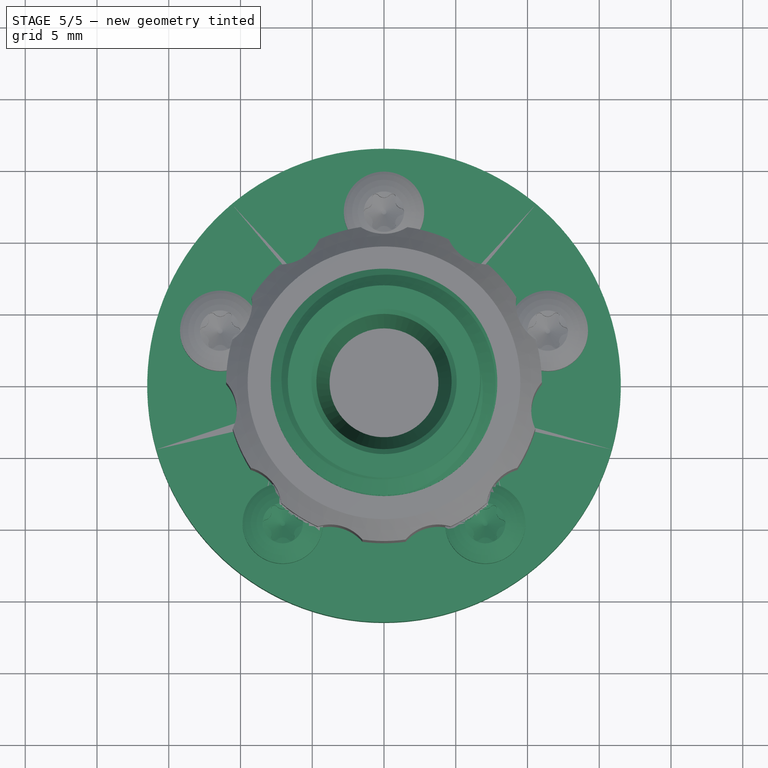
[diagram: stage 5 of 5 — top view after this stage's code; geometry added in this stage tinted green]
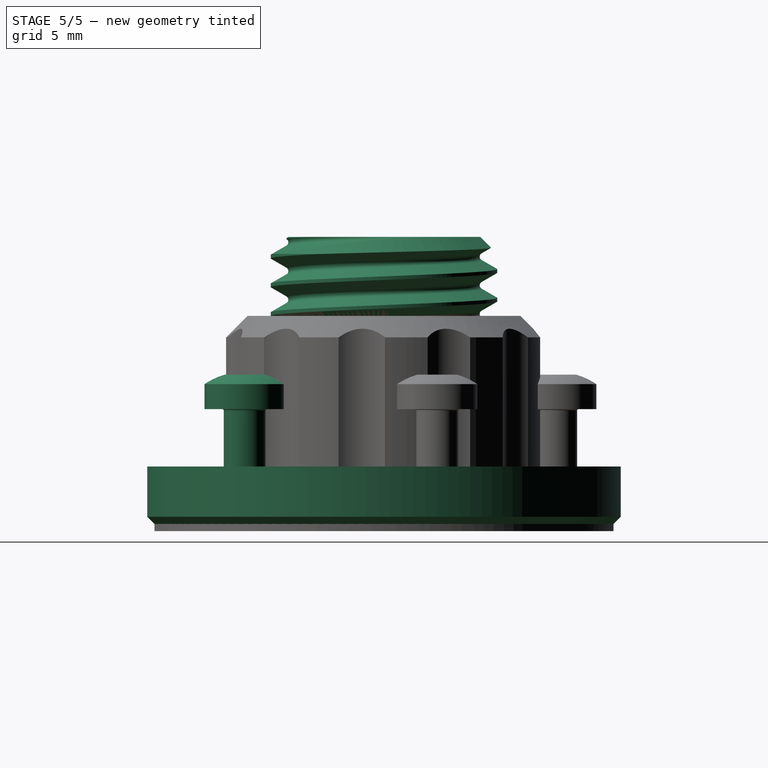
[diagram: stage 5 of 5 — right view after this stage's code; geometry added in this stage tinted green]
FEATURE [Sketcher::SketchObject] Sketch
  FullyConstrained = false
  MapMode = 5
  Placement = pos=(0,0,0) rot=(0.57735,0.57735,0.57735;2.0944rad)
  Support = -> [YZ_Plane]
  expr: Constraints[14] = dd.ddPlateDiameter
  sketch-geometry (14):
    g0: LineSegment StartX=1 StartY=5.5 StartZ=0 EndX=1 EndY=3 EndZ=0
    g1: LineSegment StartX=4 StartY=0 StartZ=0 EndX=16.5 EndY=0 EndZ=0
    g2: LineSegment StartX=16.5 StartY=0 StartZ=0 EndX=16.5 EndY=4.5 EndZ=0
    g3: LineSegment StartX=16.5 StartY=4.5 StartZ=0 EndX=8 EndY=4.5 EndZ=0
    g4: LineSegment StartX=2 StartY=10.5 StartZ=0 EndX=2 EndY=5.5 EndZ=0
    g5: LineSegment StartX=2 StartY=5.5 StartZ=0 EndX=1 EndY=5.5 EndZ=0
    g6: LineSegment StartX=4.76327 StartY=20.5 StartZ=0 EndX=6.7 EndY=20.5 EndZ=0
    g7: LineSegment StartX=6.7 StartY=20.5 StartZ=0 EndX=8 EndY=19.2 EndZ=0
    g8: LineSegment StartX=8 StartY=19.2 StartZ=0 EndX=8 EndY=4.5 EndZ=0
    g9: ArcOfCircle CenterX=4 CenterY=3 CenterZ=0 NormalX=0 NormalY=0 NormalZ=1 AngleXU=0 Radius=3 StartAngle=3.14159 EndAngle=4.71239
    g10: GeomPoint X=1 Y=0 Z=0
    g11: LineSegment StartX=4.76327 StartY=20.5 StartZ=0 EndX=3 EndY=10.5 EndZ=0
    g12: LineSegment StartX=2 StartY=10 StartZ=0 EndX=2 EndY=20.5 EndZ=0
    g13: LineSegment StartX=2 StartY=10.5 StartZ=0 EndX=3 EndY=10.5 EndZ=0
  constraints (39):
    c: PointOnObject(g10,g-1)
    c: Vertical(g0)
    c: Horizontal(g1)
    c: Coincident(g1,g2)
    c: Coincident(g2,g3)
    c: Vertical(g4)
    c: Coincident(g4,g5)
    c: Horizontal(g5)
    c: Coincident(g0,g5)
    c: DistanceX(g-1,g10) = 1
    c: DistanceX(g-1,g4) = 2
    c: DistanceY(g2,g2) = 4.5
    c: Vertical(g2)
    c: DistanceY(g10,g0) = 5.5
    c: DistanceX(g-1,g1) = 16.5
    c: Horizontal(g6)
    c: Coincident(g6,g7)
    c: Coincident(g7,g8)
    c: Vertical(g8)
    c: DistanceX(g6,g7) = 1.3
    c: Angle(g7,g8) = 2.35619
    c: DistanceX(g-1,g8) = 8
    c: Coincident(g3,g8)
    c: Horizontal(g3)
    c: PointOnObject(g10,g0)
    c: PointOnObject(g10,g1)
    c: Tangent(g0,g9) = -1.5708
    c: Tangent(g1,g9) = -1.5708
    c: Radius(g9) = 3
    c: Coincident(g11,g6)
    c: Vertical(g12)
    c: Angle(g11,g12) = 0.174533
    c: Horizontal(g12,g6)
    c: DistanceY(g4,g4) = 5
    c: Coincident(g13,g4)
    c: Coincident(g13,g11)
    c: Horizontal(g13)
    c: DistanceX(g13,g13) = 1
    c: DistanceY(g-1,g6) = 20.5
FEATURE [PartDesign::Revolution] Revolution
  Angle = 360
  Axis = (-2e-16,3e-16,1)
  Base = (0,0,0)
  Placement = pos=(0,0,0) rot=(0.57735,0.57735,0.57735;2.0944rad)
  Profile = -> Sketch
  ReferenceAxis = -> Sketch [V_Axis]
  Refine = true
  Reversed = true
FEATURE [Part::FeaturePython] ScrewDie  label="M16x14-ScrewDie"  # Fasteners workbench fastener (typed FeaturePython)
  Placement = pos=(0,0,25.5) rot=(0,0,1;0rad)
  diameter = 13
  diameterCustom = 6
  invert = false
  leftHanded = false
  length = 14
  matchOuter = false
  offset = 0
  pitchCustom = 1
  thread = true
  type = 0
FEATURE [PartDesign::Chamfer] Chamfer
  Angle = 45
  Base = -> Revolution [Edge1,Edge4,Edge17]
  BaseFeature = -> Revolution
  ChamferType = 0
  FlipDirection = false
  Placement = pos=(0,0,0) rot=(0.57735,0.57735,0.57735;2.0944rad)
  Refine = true
  Size = 0.3
  Size2 = 1
  SupportTransform = false
  UseAllEdges = false
FEATURE [Sketcher::SketchObject] Sketch002
  AttachmentOffset = pos=(0,0,5.1) rot=(0,0,1;0rad)
  FullyConstrained = true
  MapMode = 5
  Placement = pos=(0,0,5.1) rot=(0,0,1;0rad)
  Support = -> [XY_Plane]
  expr: Constraints[2] = dd.ddHoleRing
  sketch-geometry (1):
    g0: Circle CenterX=0 CenterY=12 CenterZ=0 NormalX=0 NormalY=0 NormalZ=1 AngleXU=0 Radius=1.75
  constraints (3):
    c: PointOnObject(g0,g-2)
    c: Diameter(g0) = 3.5
    c: DistanceY(g-1,g0) = 12
FEATURE [PartDesign::Chamfer] Chamfer001
  Angle = 45
  Base = -> Chamfer [Edge19]
  BaseFeature = -> Chamfer
  ChamferType = 0
  FlipDirection = false
  Placement = pos=(0,0,0) rot=(0.57735,0.57735,0.57735;2.0944rad)
  Refine = true
  Size = 1
  Size2 = 1
  SupportTransform = false
  UseAllEdges = false
FEATURE [PartDesign::Hole] Hole
  BaseFeature = -> Chamfer001
  CustomThreadClearance = 0
  Depth = 4.5
  DepthType = 0
  Diameter = 3.3
  DrillForDepth = false
  DrillPoint = 0
  DrillPointAngle = 118
  HoleCutCountersinkAngle = 90
  HoleCutCustomValues = false
  HoleCutDepth = 4
  HoleCutDiameter = 4
  HoleCutType = 1
  ModelThread = false
  Placement = pos=(0,0,0) rot=(0.57735,0.57735,0.57735;2.0944rad)
  Profile = -> Sketch002
  Refine = true
  Tapered = false
  TaperedAngle = 90
  ThreadClass = 0
  ThreadDepth = 4.5
  ThreadDepthType = 0
  ThreadDirection = 0
  ThreadFit = 0
  ThreadSize = 0
  ThreadType = 0
  Threaded = false
  UseCustomThreadClearance = false
FEATURE [PartDesign::PolarPattern] PolarPattern001
  Angle = 360
  Axis = -> Sketch002 [N_Axis]
  BaseFeature = -> Hole
  Occurrences = 5
  Originals = -> [Hole]
  Placement = pos=(0,0,0) rot=(0.57735,0.57735,0.57735;2.0944rad)
  Refine = true
FEATURE [PartDesign::Boolean] Boolean
  BaseFeature = -> PolarPattern001
  Group = -> [ScrewDie]
  Refine = true
  Type = 1
FEATURE [Part::FeaturePython] ScrewTap  label="M16x8.5-ScrewTap"  # Fasteners workbench fastener (typed FeaturePython)
  Placement = pos=(0,0,8.5) rot=(0,0,1;0rad)
  diameter = 13
  diameterCustom = 6
  invert = false
  leftHanded = false
  length = 8.5
  matchOuter = false
  offset = 0
  pitchCustom = 1
  thread = true
  type = 2
  expr: .Placement.Base.z = Pad001.Length - 3mm
  expr: length = Pad001.Length - 3mm
FEATURE [Part::FeaturePython] Screw  label="M3x6-Screw"  # Fasteners workbench fastener (typed FeaturePython)
  Placement = pos=(-7.05342,-9.7082,8.5) rot=(0,0,1;0rad)
  baseObject = -> Body001 [Edge13]
  diameter = 3
  invert = false
  leftHanded = false
  length = 2
  lengthCustom = 6
  matchOuter = false
  offset = 0
  thread = false
  type = 23
FEATURE [Part::FeaturePython] Screw001  label="M3x6-Screw005"  # Fasteners workbench fastener (typed FeaturePython)
  Placement = pos=(7.05342,-9.7082,8.5) rot=(0,0,1;0rad)
  baseObject = -> Body001 [Edge15]
  diameter = 3
  invert = false
  leftHanded = false
  length = 2
  lengthCustom = 6
  matchOuter = true
  offset = 0
  thread = false
  type = 23
FEATURE [PartDesign::Boolean] Boolean001
  BaseFeature = -> Pocket001
  Group = -> [ScrewTap]
  Refine = true
  Type = 1
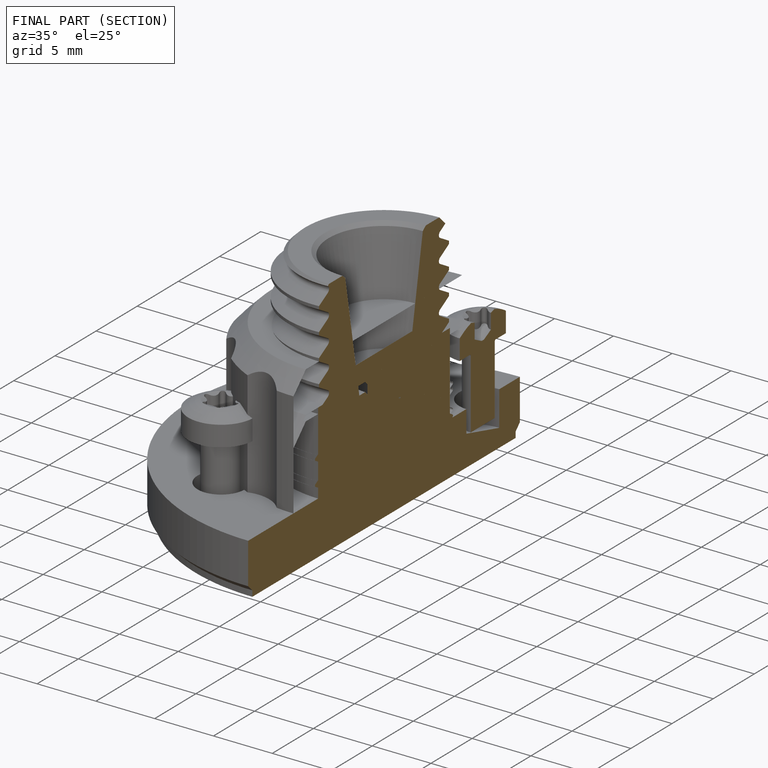
[diagram: finished part — half-section view (interior)]
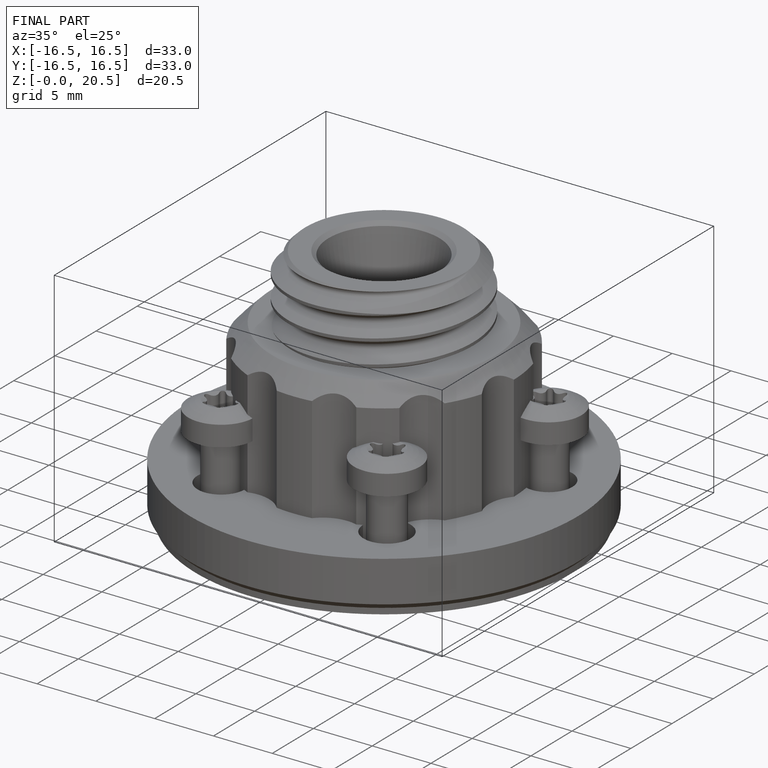
[diagram: finished part — iso view with bounding-box wireframe]
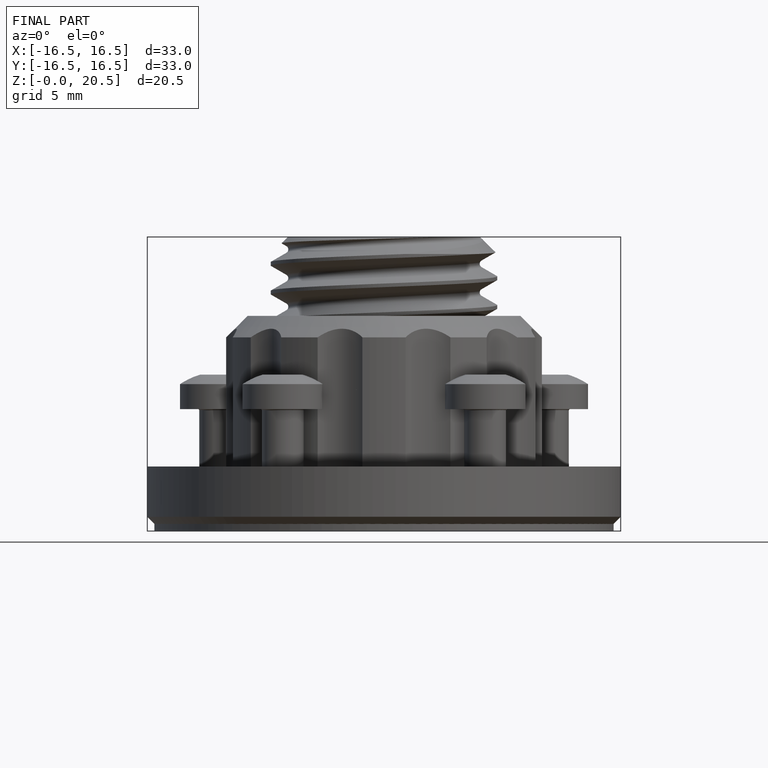
[diagram: finished part — front view with bounding-box wireframe]
